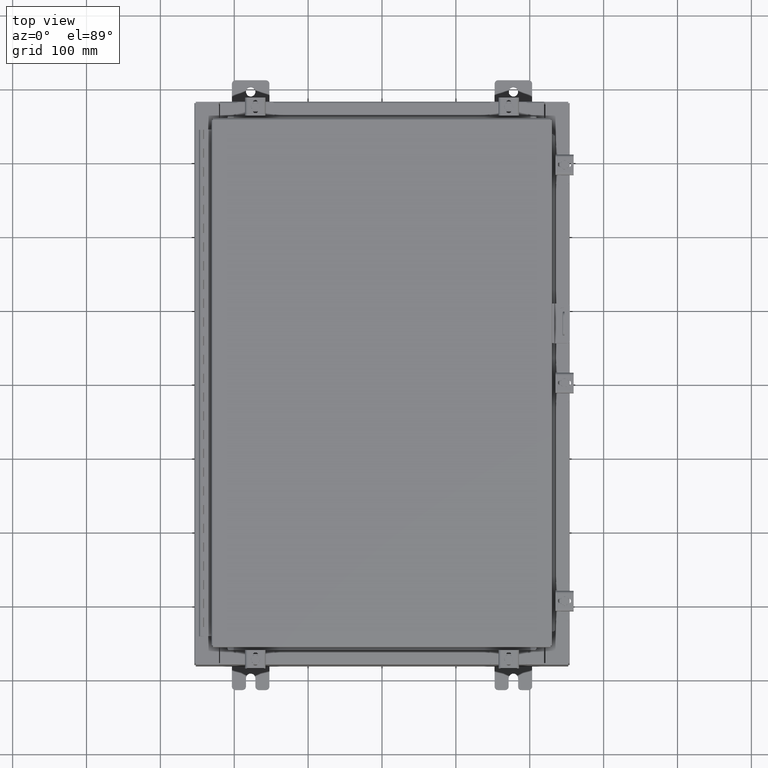
[diagram: clean part render]
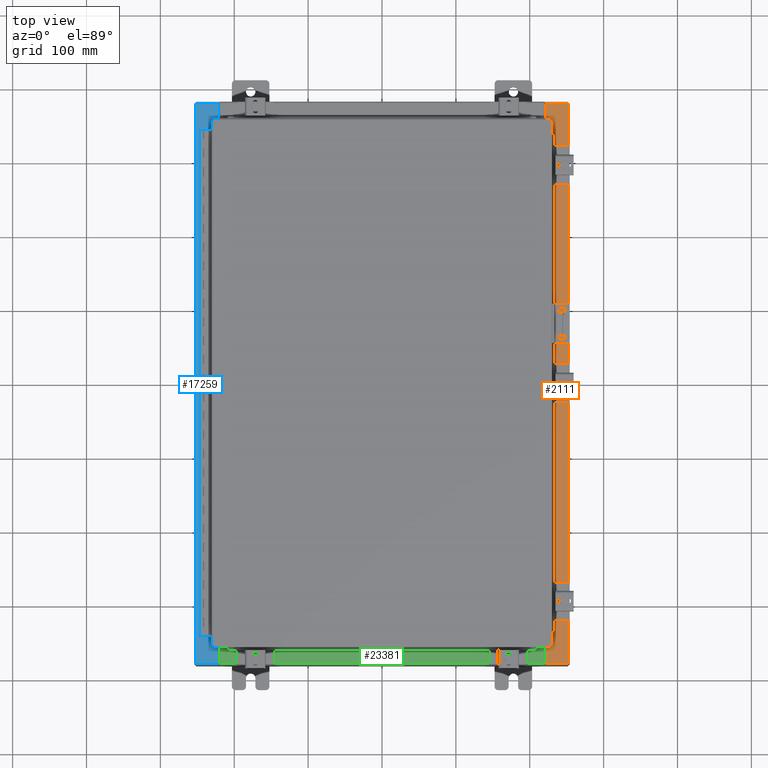
[diagram: same view with three faces highlighted in distinct colors, each labeled with its STEP entity id]
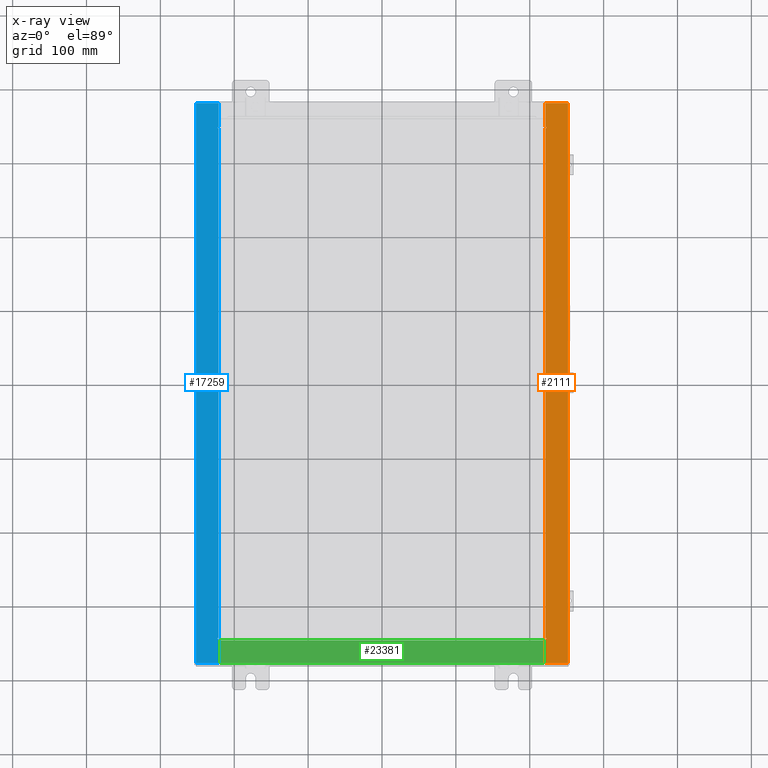
[diagram: x-ray of the same camera — body ghosted, the three highlighted faces saturated]
A machine part, top view with three faces highlighted in distinct colors.
The next image is the same camera in x-ray (body ghosted, the three faces saturated) — at least one of them is partly hidden behind the body in this view.
Their STEP definitions:

[orange] entity #2111 — the highlighted planar face has unit normal (-0, 0, -1).
#115 = VECTOR ( 'NONE', #33357, 39.37007874015748100 ) ;
#281 = VERTEX_POINT ( 'NONE', #13502 ) ;
#562 = ORIENTED_EDGE ( 'NONE', *, *, #2291, .F. ) ;
#1609 = CARTESIAN_POINT ( 'NONE',  ( 8.699700000000019500, -13.63109999999999800, 5.925300000000009800 ) ) ;
#1794 = DIRECTION ( 'NONE',  ( -1.000000000000000000, 0.0000000000000000000, 7.132762385546378400E-015 ) ) ;
#1876 = DIRECTION ( 'NONE',  ( -7.132762385546378400E-015, 0.0000000000000000000, -1.000000000000000000 ) ) ;
#1904 = DIRECTION ( 'NONE',  ( -0.0000000000000000000, -1.000000000000000000, -0.0000000000000000000 ) ) ;
#1976 = VERTEX_POINT ( 'NONE', #9930 ) ;
#2010 = ORIENTED_EDGE ( 'NONE', *, *, #20116, .F. ) ;
#2111 = ADVANCED_FACE ( 'NONE', ( #28770 ), #4623, .F. ) ;
#2291 = EDGE_CURVE ( 'NONE', #1976, #8353, #14741, .T. ) ;
#2651 = CARTESIAN_POINT ( 'NONE',  ( 8.699700000000019500, 13.63110000000000700, 5.925300000000009800 ) ) ;
#2720 = CARTESIAN_POINT ( 'NONE',  ( 4.252457061909005100E-014, 0.0000000000000000000, 5.925300000000072800 ) ) ;
#2799 = CARTESIAN_POINT ( 'NONE',  ( 8.750050000000021200, 13.63110000000000700, 5.925300000000009800 ) ) ;
#3095 = VECTOR ( 'NONE', #17189, 39.37007874015748100 ) ;
#3296 = ORIENTED_EDGE ( 'NONE', *, *, #10003, .T. ) ;
#3306 = CARTESIAN_POINT ( 'NONE',  ( 8.750050000000021200, -13.59375000000000000, 5.925300000000009800 ) ) ;
#3514 = CIRCLE ( 'NONE', #15715, 0.01867499999999949400 ) ;
#3989 = VECTOR ( 'NONE', #17678, 39.37007874015748100 ) ;
#4281 = ORIENTED_EDGE ( 'NONE', *, *, #28628, .F. ) ;
#4405 = VECTOR ( 'NONE', #6666, 39.37007874015748100 ) ;
#4623 = PLANE ( 'NONE',  #16910 ) ;
#5379 = CARTESIAN_POINT ( 'NONE',  ( 8.712700000000021200, -13.59375000000000000, 5.925300000000009800 ) ) ;
#6260 = VERTEX_POINT ( 'NONE', #15920 ) ;
#6666 = DIRECTION ( 'NONE',  ( 0.0000000000000000000, -1.000000000000000000, 0.0000000000000000000 ) ) ;
#7056 = VECTOR ( 'NONE', #1904, 39.37007874015748100 ) ;
#7611 = EDGE_CURVE ( 'NONE', #28051, #16396, #18451, .T. ) ;
#7809 = CARTESIAN_POINT ( 'NONE',  ( 8.750050000000021200, 13.61242500000000900, 5.925300000000009800 ) ) ;
#8046 = VERTEX_POINT ( 'NONE', #31100 ) ;
#8353 = VERTEX_POINT ( 'NONE', #30619 ) ;
#8604 = ORIENTED_EDGE ( 'NONE', *, *, #14066, .T. ) ;
#8656 = CARTESIAN_POINT ( 'NONE',  ( 8.750050000000021200, -13.63109999999999800, 5.925300000000009800 ) ) ;
#9317 = ORIENTED_EDGE ( 'NONE', *, *, #14852, .F. ) ;
#9815 = DIRECTION ( 'NONE',  ( -0.0000000000000000000, 1.000000000000000000, -0.0000000000000000000 ) ) ;
#9930 = CARTESIAN_POINT ( 'NONE',  ( 9.912300000000019700, 14.92530000000000700, 5.925300000000001800 ) ) ;
#10003 = EDGE_CURVE ( 'NONE', #1976, #35641, #36430, .T. ) ;
#10087 = CARTESIAN_POINT ( 'NONE',  ( 9.912300000000019700, -14.92529999999999800, 5.925300000000001800 ) ) ;
#10688 = DIRECTION ( 'NONE',  ( 1.000000000000000000, 0.0000000000000000000, 0.0000000000000000000 ) ) ;
#10701 = LINE ( 'NONE', #11179, #18379 ) ;
#11179 = CARTESIAN_POINT ( 'NONE',  ( 8.699700000000019500, 0.0000000000000000000, 5.925300000000009800 ) ) ;
#11298 = VERTEX_POINT ( 'NONE', #8656 ) ;
#11676 = LINE ( 'NONE', #3306, #3989 ) ;
#12084 = CARTESIAN_POINT ( 'NONE',  ( 8.699700000000019500, -13.63109999999999800, 5.925300000000009800 ) ) ;
#13136 = EDGE_CURVE ( 'NONE', #11298, #281, #27645, .T. ) ;
#13310 = ORIENTED_EDGE ( 'NONE', *, *, #7611, .F. ) ;
#13346 = VECTOR ( 'NONE', #23442, 39.37007874015748100 ) ;
#13502 = CARTESIAN_POINT ( 'NONE',  ( 8.750050000000021200, -13.59375000000000000, 5.925300000000009800 ) ) ;
#14066 = EDGE_CURVE ( 'NONE', #20508, #6260, #34293, .T. ) ;
#14741 = LINE ( 'NONE', #10087, #7056 ) ;
#14852 = EDGE_CURVE ( 'NONE', #18952, #8046, #15654, .T. ) ;
#14922 = DIRECTION ( 'NONE',  ( 7.132762385546378400E-015, 0.0000000000000000000, 1.000000000000000000 ) ) ;
#15534 = AXIS2_PLACEMENT_3D ( 'NONE', #32271, #14922, #35160 ) ;
#15654 = LINE ( 'NONE', #18974, #30153 ) ;
#15715 = AXIS2_PLACEMENT_3D ( 'NONE', #7809, #28037, #10688 ) ;
#15920 = CARTESIAN_POINT ( 'NONE',  ( 8.699700000000019500, -14.92529999999999800, 5.925300000000009800 ) ) ;
#16026 = CARTESIAN_POINT ( 'NONE',  ( 6.913922522733892400E-014, -14.92530000000001400, 5.925300000000072800 ) ) ;
#16396 = VERTEX_POINT ( 'NONE', #2651 ) ;
#16910 = AXIS2_PLACEMENT_3D ( 'NONE', #2720, #1876, #1794 ) ;
#17189 = DIRECTION ( 'NONE',  ( -1.000000000000000000, 0.0000000000000000000, 0.0000000000000000000 ) ) ;
#17678 = DIRECTION ( 'NONE',  ( -1.000000000000000000, 0.0000000000000000000, 0.0000000000000000000 ) ) ;
#18379 = VECTOR ( 'NONE', #22810, 39.37007874015748100 ) ;
#18451 = LINE ( 'NONE', #2799, #3095 ) ;
#18639 = VERTEX_POINT ( 'NONE', #5379 ) ;
#18887 = DIRECTION ( 'NONE',  ( 1.000000000000000000, 0.0000000000000000000, 0.0000000000000000000 ) ) ;
#18952 = VERTEX_POINT ( 'NONE', #29892 ) ;
#18974 = CARTESIAN_POINT ( 'NONE',  ( 8.712700000000021200, 13.59375000000000900, 5.925300000000009800 ) ) ;
#20116 = EDGE_CURVE ( 'NONE', #18639, #18952, #24355, .T. ) ;
#20508 = VERTEX_POINT ( 'NONE', #12084 ) ;
#20515 = CARTESIAN_POINT ( 'NONE',  ( 4.252457061909005100E-014, 14.92530000000000500, 5.925300000000072800 ) ) ;
#21301 = CARTESIAN_POINT ( 'NONE',  ( 8.712700000000021200, -13.59375000000000000, 5.925300000000009800 ) ) ;
#22211 = LINE ( 'NONE', #1609, #30835 ) ;
#22810 = DIRECTION ( 'NONE',  ( 0.0000000000000000000, -1.000000000000000000, 0.0000000000000000000 ) ) ;
#23161 = LINE ( 'NONE', #16026, #115 ) ;
#23442 = DIRECTION ( 'NONE',  ( -1.000000000000000000, 0.0000000000000000000, 7.132762385546378400E-015 ) ) ;
#23746 = EDGE_CURVE ( 'NONE', #6260, #8353, #23161, .T. ) ;
#23961 = CARTESIAN_POINT ( 'NONE',  ( 8.699700000000019500, 0.0000000000000000000, 5.925300000000009800 ) ) ;
#24239 = EDGE_CURVE ( 'NONE', #20508, #11298, #22211, .T. ) ;
#24355 = LINE ( 'NONE', #21301, #31164 ) ;
#25627 = CARTESIAN_POINT ( 'NONE',  ( 8.699700000000019500, 14.92530000000000700, 5.925300000000009800 ) ) ;
#26473 = EDGE_CURVE ( 'NONE', #8046, #28051, #3514, .T. ) ;
#27585 = ORIENTED_EDGE ( 'NONE', *, *, #24239, .F. ) ;
#27645 = CIRCLE ( 'NONE', #15534, 0.01867499999999949400 ) ;
#27802 = ORIENTED_EDGE ( 'NONE', *, *, #23746, .T. ) ;
#28037 = DIRECTION ( 'NONE',  ( 7.132762385546378400E-015, 0.0000000000000000000, 1.000000000000000000 ) ) ;
#28051 = VERTEX_POINT ( 'NONE', #34969 ) ;
#28628 = EDGE_CURVE ( 'NONE', #281, #18639, #11676, .T. ) ;
#28770 = FACE_OUTER_BOUND ( 'NONE', #33241, .T. ) ;
#29008 = ORIENTED_EDGE ( 'NONE', *, *, #29634, .T. ) ;
#29634 = EDGE_CURVE ( 'NONE', #35641, #16396, #10701, .T. ) ;
#29892 = CARTESIAN_POINT ( 'NONE',  ( 8.712700000000021200, 13.59375000000000900, 5.925300000000009800 ) ) ;
#30153 = VECTOR ( 'NONE', #36332, 39.37007874015748100 ) ;
#30619 = CARTESIAN_POINT ( 'NONE',  ( 9.912300000000019700, -14.92529999999999800, 5.925300000000001800 ) ) ;
#30835 = VECTOR ( 'NONE', #18887, 39.37007874015748100 ) ;
#31100 = CARTESIAN_POINT ( 'NONE',  ( 8.750050000000021200, 13.59375000000000900, 5.925300000000009800 ) ) ;
#31164 = VECTOR ( 'NONE', #9815, 39.37007874015748100 ) ;
#32271 = CARTESIAN_POINT ( 'NONE',  ( 8.750050000000021200, -13.61242500000000000, 5.925300000000009800 ) ) ;
#33014 = ORIENTED_EDGE ( 'NONE', *, *, #26473, .F. ) ;
#33241 = EDGE_LOOP ( 'NONE', ( #27585, #8604, #27802, #562, #3296, #29008, #13310, #33014, #9317, #2010, #4281, #33839 ) ) ;
#33357 = DIRECTION ( 'NONE',  ( 1.000000000000000000, 1.783190596386595000E-015, -7.132762385546378400E-015 ) ) ;
#33839 = ORIENTED_EDGE ( 'NONE', *, *, #13136, .F. ) ;
#34293 = LINE ( 'NONE', #23961, #4405 ) ;
#34969 = CARTESIAN_POINT ( 'NONE',  ( 8.750050000000021200, 13.63110000000000700, 5.925300000000009800 ) ) ;
#35160 = DIRECTION ( 'NONE',  ( 1.000000000000000000, 0.0000000000000000000, 0.0000000000000000000 ) ) ;
#35641 = VERTEX_POINT ( 'NONE', #25627 ) ;
#36332 = DIRECTION ( 'NONE',  ( 1.000000000000000000, 0.0000000000000000000, 0.0000000000000000000 ) ) ;
#36430 = LINE ( 'NONE', #20515, #13346 ) ;

[blue] entity #17259 — the highlighted planar face has unit normal (0, -0, -1).
#204 = ORIENTED_EDGE ( 'NONE', *, *, #16301, .F. ) ;
#508 = CARTESIAN_POINT ( 'NONE',  ( -8.750050000000021200, -13.63109999999999500, 5.925300000000008000 ) ) ;
#979 = ORIENTED_EDGE ( 'NONE', *, *, #18506, .F. ) ;
#1758 = CARTESIAN_POINT ( 'NONE',  ( -4.252457061909003200E-014, 14.92530000000000500, 5.925300000000069300 ) ) ;
#1785 = LINE ( 'NONE', #21547, #16240 ) ;
#3422 = VECTOR ( 'NONE', #27123, 39.37007874015748100 ) ;
#3970 = CARTESIAN_POINT ( 'NONE',  ( -8.699700000000019500, 13.63110000000000400, 5.925300000000008000 ) ) ;
#4380 = VERTEX_POINT ( 'NONE', #8222 ) ;
#4432 = DIRECTION ( 'NONE',  ( -7.321388497823866900E-017, 1.000000000000000000, -3.660694248911984600E-017 ) ) ;
#4447 = EDGE_CURVE ( 'NONE', #6223, #24489, #36309, .T. ) ;
#5025 = VECTOR ( 'NONE', #4432, 39.37007874015748100 ) ;
#5750 = ORIENTED_EDGE ( 'NONE', *, *, #34273, .F. ) ;
#6223 = VERTEX_POINT ( 'NONE', #15663 ) ;
#6302 = ORIENTED_EDGE ( 'NONE', *, *, #4447, .F. ) ;
#6318 = CARTESIAN_POINT ( 'NONE',  ( -9.912300000000017900, -14.92529999999999600, 5.925299999999999100 ) ) ;
#6876 = CIRCLE ( 'NONE', #29962, 0.01867499999999949400 ) ;
#7552 = DIRECTION ( 'NONE',  ( -7.132762385546378400E-015, 3.660694248911932200E-017, 1.000000000000000000 ) ) ;
#7578 = LINE ( 'NONE', #1758, #22002 ) ;
#7747 = AXIS2_PLACEMENT_3D ( 'NONE', #27913, #10574, #30808 ) ;
#7994 = ORIENTED_EDGE ( 'NONE', *, *, #29482, .T. ) ;
#8064 = LINE ( 'NONE', #33117, #32067 ) ;
#8222 = CARTESIAN_POINT ( 'NONE',  ( -8.699700000000019500, -14.92529999999999600, 5.925300000000008000 ) ) ;
#8489 = ORIENTED_EDGE ( 'NONE', *, *, #24537, .F. ) ;
#8590 = DIRECTION ( 'NONE',  ( -1.000000000000000000, 0.0000000000000000000, 0.0000000000000000000 ) ) ;
#9373 = EDGE_CURVE ( 'NONE', #13813, #17889, #11089, .T. ) ;
#9787 = CARTESIAN_POINT ( 'NONE',  ( -8.712700000000021200, 13.59375000000000200, 5.925300000000008000 ) ) ;
#9888 = DIRECTION ( 'NONE',  ( -1.000000000000000000, 0.0000000000000000000, -7.132762385546378400E-015 ) ) ;
#10124 = ORIENTED_EDGE ( 'NONE', *, *, #17824, .F. ) ;
#10574 = DIRECTION ( 'NONE',  ( -7.132762385546378400E-015, 3.660694248911932200E-017, 1.000000000000000000 ) ) ;
#10576 = DIRECTION ( 'NONE',  ( -1.000000000000000000, -4.379057701015054300E-047, -7.132762385546378400E-015 ) ) ;
#10828 = CARTESIAN_POINT ( 'NONE',  ( -8.699700000000019500, 13.63110000000000400, 5.925300000000008000 ) ) ;
#11089 = LINE ( 'NONE', #3970, #3422 ) ;
#11270 = CARTESIAN_POINT ( 'NONE',  ( -8.750050000000021200, -13.59374999999999500, 5.925300000000008000 ) ) ;
#11328 = VECTOR ( 'NONE', #28984, 39.37007874015748100 ) ;
#12728 = LINE ( 'NONE', #13037, #5025 ) ;
#12985 = DIRECTION ( 'NONE',  ( 1.000000000000000000, 4.379057701015054300E-047, 7.132762385546378400E-015 ) ) ;
#13037 = CARTESIAN_POINT ( 'NONE',  ( -9.912300000000019700, 14.92530000000000500, 5.925299999999999100 ) ) ;
#13283 = AXIS2_PLACEMENT_3D ( 'NONE', #32943, #27230, #9888 ) ;
#13813 = VERTEX_POINT ( 'NONE', #10828 ) ;
#13991 = CARTESIAN_POINT ( 'NONE',  ( -8.712700000000021200, 13.59375000000000400, 5.925300000000008000 ) ) ;
#15549 = DIRECTION ( 'NONE',  ( 4.379057701015054300E-047, 1.000000000000000000, -3.660694248911932200E-017 ) ) ;
#15663 = CARTESIAN_POINT ( 'NONE',  ( -8.712700000000021200, -13.59374999999999500, 5.925300000000008000 ) ) ;
#15944 = CARTESIAN_POINT ( 'NONE',  ( -9.912300000000017900, 14.92530000000000500, 5.925299999999999100 ) ) ;
#15960 = ORIENTED_EDGE ( 'NONE', *, *, #26581, .F. ) ;
#16240 = VECTOR ( 'NONE', #12985, 39.37007874015748100 ) ;
#16301 = EDGE_CURVE ( 'NONE', #30964, #26816, #31871, .T. ) ;
#17172 = CARTESIAN_POINT ( 'NONE',  ( -8.712700000000021200, -13.59374999999999500, 5.925300000000008000 ) ) ;
#17259 = ADVANCED_FACE ( 'NONE', ( #31789 ), #18487, .F. ) ;
#17536 = ORIENTED_EDGE ( 'NONE', *, *, #35308, .T. ) ;
#17824 = EDGE_CURVE ( 'NONE', #21757, #23082, #12728, .T. ) ;
#17889 = VERTEX_POINT ( 'NONE', #30733 ) ;
#18487 = PLANE ( 'NONE',  #13283 ) ;
#18506 = EDGE_CURVE ( 'NONE', #17889, #30964, #37114, .T. ) ;
#18665 = DIRECTION ( 'NONE',  ( 4.379057701015054300E-047, 1.000000000000000000, -3.660694248911932200E-017 ) ) ;
#18710 = ORIENTED_EDGE ( 'NONE', *, *, #36049, .T. ) ;
#19025 = LINE ( 'NONE', #20222, #11328 ) ;
#19431 = LINE ( 'NONE', #35795, #25322 ) ;
#19679 = DIRECTION ( 'NONE',  ( 1.000000000000000000, 0.0000000000000000000, 0.0000000000000000000 ) ) ;
#20222 = CARTESIAN_POINT ( 'NONE',  ( -8.750050000000021200, -13.63109999999999500, 5.925300000000008000 ) ) ;
#20614 = VERTEX_POINT ( 'NONE', #21277 ) ;
#21277 = CARTESIAN_POINT ( 'NONE',  ( -8.699700000000019500, -13.63109999999999600, 5.925300000000008000 ) ) ;
#21547 = CARTESIAN_POINT ( 'NONE',  ( -4.252457061909004500E-014, -14.92529999999999600, 5.925300000000070200 ) ) ;
#21757 = VERTEX_POINT ( 'NONE', #6318 ) ;
#22002 = VECTOR ( 'NONE', #10576, 39.37007874015748100 ) ;
#22591 = CARTESIAN_POINT ( 'NONE',  ( -8.750050000000021200, 13.59375000000000200, 5.925300000000008000 ) ) ;
#23082 = VERTEX_POINT ( 'NONE', #15944 ) ;
#23342 = CARTESIAN_POINT ( 'NONE',  ( -8.699700000000019500, 14.92530000000000500, 5.925300000000007100 ) ) ;
#24489 = VERTEX_POINT ( 'NONE', #11270 ) ;
#24537 = EDGE_CURVE ( 'NONE', #30428, #20614, #19025, .T. ) ;
#24838 = CARTESIAN_POINT ( 'NONE',  ( -8.750050000000021200, -13.61242499999999500, 5.925300000000008000 ) ) ;
#25056 = VECTOR ( 'NONE', #19679, 39.37007874015748100 ) ;
#25322 = VECTOR ( 'NONE', #15549, 39.37007874015748100 ) ;
#26329 = EDGE_CURVE ( 'NONE', #4380, #20614, #8064, .T. ) ;
#26581 = EDGE_CURVE ( 'NONE', #26816, #6223, #31579, .T. ) ;
#26816 = VERTEX_POINT ( 'NONE', #9787 ) ;
#27123 = DIRECTION ( 'NONE',  ( -1.000000000000000000, -4.340572780399910900E-014, 0.0000000000000000000 ) ) ;
#27230 = DIRECTION ( 'NONE',  ( 7.132762385546378400E-015, -3.660694248911932200E-017, -1.000000000000000000 ) ) ;
#27779 = DIRECTION ( 'NONE',  ( 1.000000000000000000, 0.0000000000000000000, 0.0000000000000000000 ) ) ;
#27913 = CARTESIAN_POINT ( 'NONE',  ( -8.750050000000021200, 13.61242500000000200, 5.925300000000008000 ) ) ;
#28584 = VECTOR ( 'NONE', #8590, 39.37007874015748100 ) ;
#28984 = DIRECTION ( 'NONE',  ( 1.000000000000000000, 0.0000000000000000000, 0.0000000000000000000 ) ) ;
#29228 = VERTEX_POINT ( 'NONE', #23342 ) ;
#29301 = ORIENTED_EDGE ( 'NONE', *, *, #26329, .T. ) ;
#29369 = EDGE_LOOP ( 'NONE', ( #31829, #17536, #7994, #10124, #18710, #29301, #8489, #5750, #6302, #15960, #204, #979 ) ) ;
#29482 = EDGE_CURVE ( 'NONE', #29228, #23082, #7578, .T. ) ;
#29962 = AXIS2_PLACEMENT_3D ( 'NONE', #24838, #7552, #27779 ) ;
#30428 = VERTEX_POINT ( 'NONE', #508 ) ;
#30733 = CARTESIAN_POINT ( 'NONE',  ( -8.750050000000021200, 13.63110000000000200, 5.925300000000007100 ) ) ;
#30808 = DIRECTION ( 'NONE',  ( 1.000000000000000000, 0.0000000000000000000, 0.0000000000000000000 ) ) ;
#30964 = VERTEX_POINT ( 'NONE', #35124 ) ;
#31579 = LINE ( 'NONE', #13991, #36565 ) ;
#31789 = FACE_OUTER_BOUND ( 'NONE', #29369, .T. ) ;
#31829 = ORIENTED_EDGE ( 'NONE', *, *, #9373, .F. ) ;
#31871 = LINE ( 'NONE', #22591, #25056 ) ;
#32067 = VECTOR ( 'NONE', #18665, 39.37007874015748100 ) ;
#32943 = CARTESIAN_POINT ( 'NONE',  ( -4.252457061909003800E-014, 2.169071163307812900E-016, 5.925300000000070200 ) ) ;
#33117 = CARTESIAN_POINT ( 'NONE',  ( -8.699700000000019500, 2.169071163307790200E-016, 5.925300000000008000 ) ) ;
#34273 = EDGE_CURVE ( 'NONE', #24489, #30428, #6876, .T. ) ;
#35124 = CARTESIAN_POINT ( 'NONE',  ( -8.750050000000021200, 13.59375000000000200, 5.925300000000008000 ) ) ;
#35308 = EDGE_CURVE ( 'NONE', #13813, #29228, #19431, .T. ) ;
#35795 = CARTESIAN_POINT ( 'NONE',  ( -8.699700000000019500, 2.169071163307790200E-016, 5.925300000000008000 ) ) ;
#36049 = EDGE_CURVE ( 'NONE', #21757, #4380, #1785, .T. ) ;
#36309 = LINE ( 'NONE', #17172, #28584 ) ;
#36565 = VECTOR ( 'NONE', #37128, 39.37007874015748100 ) ;
#37114 = CIRCLE ( 'NONE', #7747, 0.01867499999999949400 ) ;
#37128 = DIRECTION ( 'NONE',  ( -0.0000000000000000000, -1.000000000000000000, -0.0000000000000000000 ) ) ;

[green] entity #23381 — the highlighted planar face has unit normal (-0, -0, 1).
#1865 = EDGE_CURVE ( 'NONE', #27817, #7660, #26512, .T. ) ;
#4868 = VECTOR ( 'NONE', #36962, 39.37007874015748100 ) ;
#5808 = DIRECTION ( 'NONE',  ( 0.0000000000000000000, 3.566381192773190000E-015, 1.000000000000000000 ) ) ;
#7660 = VERTEX_POINT ( 'NONE', #23256 ) ;
#11726 = ORIENTED_EDGE ( 'NONE', *, *, #28783, .T. ) ;
#12499 = VECTOR ( 'NONE', #36487, 39.37007874015748100 ) ;
#12983 = ORIENTED_EDGE ( 'NONE', *, *, #30102, .F. ) ;
#13821 = CARTESIAN_POINT ( 'NONE',  ( 8.637200000000000000, -1.287299999999999900, 3.000000000000005300 ) ) ;
#14403 = PLANE ( 'NONE',  #15881 ) ;
#15881 = AXIS2_PLACEMENT_3D ( 'NONE', #28808, #5808, #26024 ) ;
#16232 = CARTESIAN_POINT ( 'NONE',  ( -8.637200000000000000, -0.07469999999999973900, 3.000000000000000900 ) ) ;
#18345 = LINE ( 'NONE', #16232, #12499 ) ;
#18440 = DIRECTION ( 'NONE',  ( -1.000000000000000000, 3.162886113166609200E-017, -1.128005754888089100E-031 ) ) ;
#18486 = DIRECTION ( 'NONE',  ( -0.0000000000000000000, -1.000000000000000000, 3.566381192773190000E-015 ) ) ;
#18527 = VERTEX_POINT ( 'NONE', #36655 ) ;
#18819 = VECTOR ( 'NONE', #18486, 39.37007874015748100 ) ;
#19538 = ORIENTED_EDGE ( 'NONE', *, *, #28388, .F. ) ;
#23256 = CARTESIAN_POINT ( 'NONE',  ( 8.637200000000000000, -1.287299999999999900, 3.000000000000005300 ) ) ;
#23381 = ADVANCED_FACE ( 'NONE', ( #25459 ), #14403, .T. ) ;
#23476 = CARTESIAN_POINT ( 'NONE',  ( 8.637200000000000000, -1.300299999999999800, 3.000000000000005300 ) ) ;
#25459 = FACE_OUTER_BOUND ( 'NONE', #27513, .T. ) ;
#25548 = VERTEX_POINT ( 'NONE', #26563 ) ;
#26024 = DIRECTION ( 'NONE',  ( 0.0000000000000000000, -1.000000000000000000, 3.566381192773190000E-015 ) ) ;
#26512 = LINE ( 'NONE', #23476, #18819 ) ;
#26563 = CARTESIAN_POINT ( 'NONE',  ( -8.637200000000000000, -1.287299999999999200, 3.000000000000005300 ) ) ;
#26977 = ORIENTED_EDGE ( 'NONE', *, *, #1865, .F. ) ;
#27513 = EDGE_LOOP ( 'NONE', ( #12983, #19538, #26977, #11726 ) ) ;
#27817 = VERTEX_POINT ( 'NONE', #31055 ) ;
#28388 = EDGE_CURVE ( 'NONE', #7660, #25548, #28846, .T. ) ;
#28783 = EDGE_CURVE ( 'NONE', #27817, #18527, #37035, .T. ) ;
#28808 = CARTESIAN_POINT ( 'NONE',  ( 0.0000000000000000000, 1.069354855923099900E-014, 3.000000000000000900 ) ) ;
#28846 = LINE ( 'NONE', #13821, #4868 ) ;
#29331 = VECTOR ( 'NONE', #18440, 39.37007874015748100 ) ;
#30102 = EDGE_CURVE ( 'NONE', #25548, #18527, #18345, .T. ) ;
#31055 = CARTESIAN_POINT ( 'NONE',  ( 8.637200000000000000, -0.08769999999999965300, 3.000000000000000900 ) ) ;
#35665 = CARTESIAN_POINT ( 'NONE',  ( -2.773851121247453900E-018, -0.08770000000000000000, 3.000000000000001300 ) ) ;
#36487 = DIRECTION ( 'NONE',  ( -0.0000000000000000000, 1.000000000000000000, -3.566381192773190000E-015 ) ) ;
#36655 = CARTESIAN_POINT ( 'NONE',  ( -8.637200000000000000, -0.08770000000000000000, 3.000000000000000900 ) ) ;
#36962 = DIRECTION ( 'NONE',  ( -1.000000000000000000, 0.0000000000000000000, 0.0000000000000000000 ) ) ;
#37035 = LINE ( 'NONE', #35665, #29331 ) ;